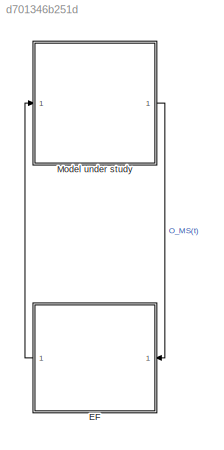
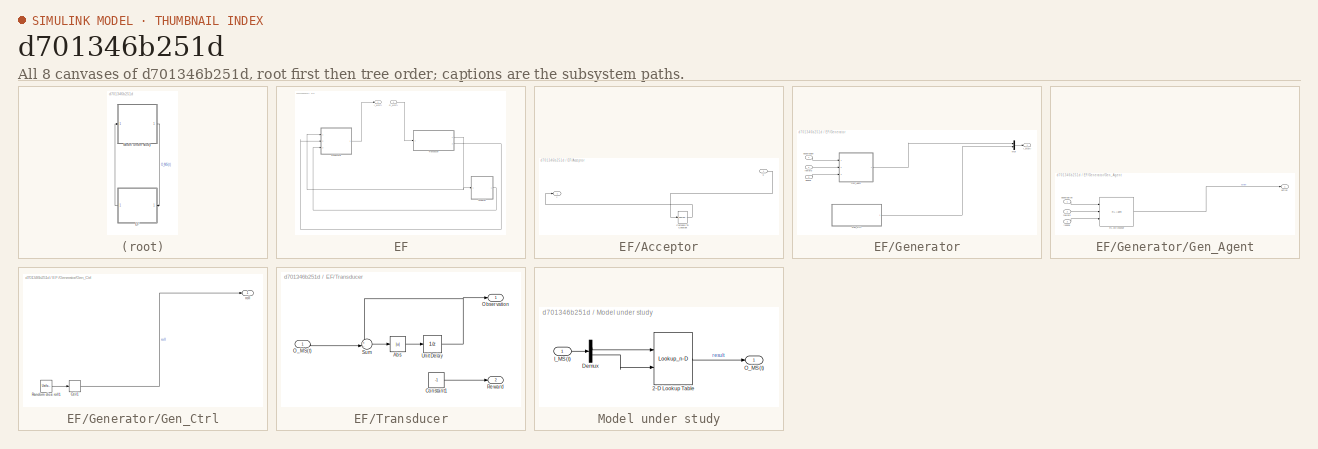
[diagram: thumbnail index - all 8 canvases of the model, root first then tree order]
MODEL slx_d701346b251d
KIND model
CONFIG AbsTol = auto
CONFIG EnableMultiTasking = off
CONFIG FixedStep = auto
CONFIG MaxStep = auto
CONFIG MinStep = auto
CONFIG RelTol = 1e-3
CONFIG SampleTimeConstraint = Unconstrained
CONFIG SolverName = VariableStepAuto
CONFIG StartTime = 0.0
CONFIG StopTime = 20
WORKSPACE source: mxarray member
WORKSPACE d = [1 2 1 2 3 1 2 4 2 4 1 3 ... (30 elements, 5x6)]
WORKSPACE seed = 1234
BLOCK [SubSystem] EF
  Ports = [1, 1]
  RequestExecContextInheritance = off
BLOCK [SubSystem] EF/Acceptor
  Ports = [1, 1]
  RequestExecContextInheritance = off
BLOCK [Reference] EF/Acceptor/Compare To Constant  REF=simulink/Logic and Bit
Operations/Compare
To Constant
  Ports = [1, 1]
  SourceBlock = simulink/Logic and Bit\nOperations/Compare\nTo Constant
  SourceProductBaseCode = SL
  SourceType = Compare To Constant
BLOCK [Inport] EF/Acceptor/u
BLOCK [Outport] EF/Acceptor/y
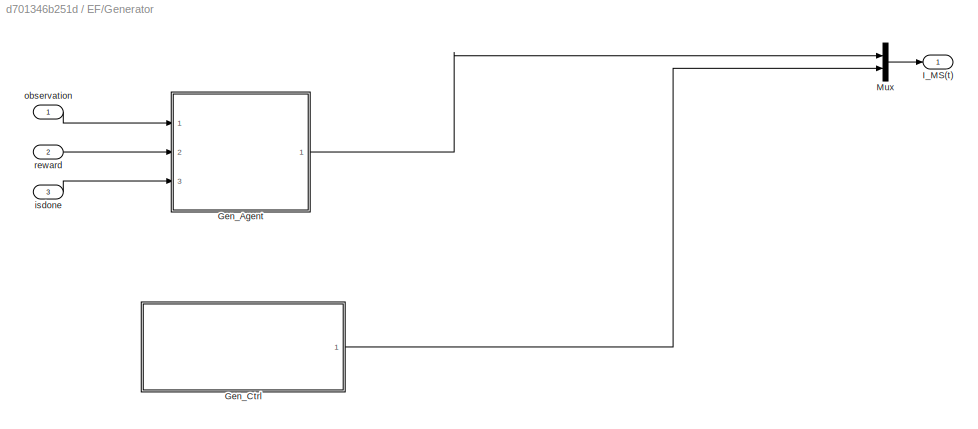
BLOCK [SubSystem] EF/Generator
  Ports = [3, 1]
  RequestExecContextInheritance = off
BLOCK [SubSystem] EF/Generator/Gen_Agent
  Ports = [3, 1]
  RequestExecContextInheritance = off
BLOCK [Reference] EF/Generator/Gen_Agent/RL die chooser  REF=rllib/RL Agent
  Ports = [3, 1]
  SourceBlock = rllib/RL Agent
  SourceProductBaseCode = RL
  SourceType = RL Agent
BLOCK [Outport] EF/Generator/Gen_Agent/action
BLOCK [Inport] EF/Generator/Gen_Agent/isdone
  Port = 3
BLOCK [Inport] EF/Generator/Gen_Agent/observation
BLOCK [Inport] EF/Generator/Gen_Agent/reward
  Port = 2
BLOCK [SubSystem] EF/Generator/Gen_Ctrl
  Ports = [0, 1]
  RequestExecContextInheritance = off
BLOCK [Rounding] EF/Generator/Gen_Ctrl/Ceil1
  Operator = ceil
BLOCK [UniformRandomNumber] EF/Generator/Gen_Ctrl/Random dice roll1
  Maximum = size(d,2)
  Minimum = 0
  SampleTime = 1
  Seed = seed
BLOCK [Outport] EF/Generator/Gen_Ctrl/roll
BLOCK [Outport] EF/Generator/I_MS(t)
BLOCK [Mux] EF/Generator/Mux
  DisplayOption = bar
  Inputs = 2
  Ports = [2, 1]
BLOCK [Inport] EF/Generator/isdone
  Port = 3
BLOCK [Inport] EF/Generator/observation
BLOCK [Inport] EF/Generator/reward
  Port = 2
BLOCK [Outport] EF/I_MS(t)
BLOCK [Inport] EF/O_MS(t)
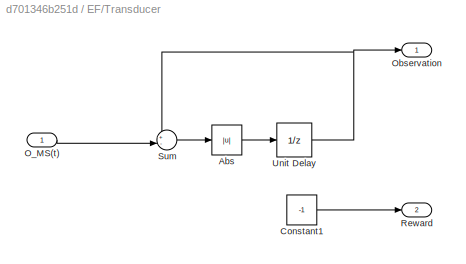
BLOCK [SubSystem] EF/Transducer
  Ports = [1, 2]
  RequestExecContextInheritance = off
BLOCK [Abs] EF/Transducer/Abs
  SaturateOnIntegerOverflow = off
BLOCK [Constant] EF/Transducer/Constant1
  Value = -1
BLOCK [Inport] EF/Transducer/O_MS(t)
BLOCK [Outport] EF/Transducer/Observation
BLOCK [Outport] EF/Transducer/Reward
  Port = 2
BLOCK [Sum] EF/Transducer/Sum
  Inputs = +-|
  Ports = [2, 1]
BLOCK [UnitDelay] EF/Transducer/Unit Delay
  HasFrameUpgradeWarning = on
  InitialCondition = randi(20)
BLOCK [SubSystem] Model under study
  Ports = [1, 1]
  RequestExecContextInheritance = off
BLOCK [Lookup_n-D] Model under study/2-D Lookup Table
  BreakpointsForDimension1 = [1:3]
  BreakpointsForDimension2 = [1:3]
  BreakpointsSpecification = Even spacing
  InputPortMap = u0,u1
  InternalRulePriority = Speed
  Ports = [2, 1]
  RndMeth = Simplest
  Table = d
BLOCK [Demux] Model under study/Demux
  Outputs = 2
  Ports = [1, 2]
BLOCK [Inport] Model under study/I_MS(t)
BLOCK [Outport] Model under study/O_MS(t)
LINE EF/Acceptor/Compare To Constant:1 -> EF/Acceptor/y:1
LINE EF/Acceptor/u:1 -> EF/Acceptor/Compare To Constant:1
LINE EF/Acceptor:1 -> EF/Generator:3
LINE EF/Generator/Gen_Agent/RL die chooser:1 -> EF/Generator/Gen_Agent/action:1
LINE EF/Generator/Gen_Agent/isdone:1 -> EF/Generator/Gen_Agent/RL die chooser:3
LINE EF/Generator/Gen_Agent/observation:1 -> EF/Generator/Gen_Agent/RL die chooser:1
LINE EF/Generator/Gen_Agent/reward:1 -> EF/Generator/Gen_Agent/RL die chooser:2
LINE EF/Generator/Gen_Agent:1 -> EF/Generator/Mux:1
LINE EF/Generator/Gen_Ctrl/Ceil1:1 -> EF/Generator/Gen_Ctrl/roll:1
LINE EF/Generator/Gen_Ctrl/Random dice roll1:1 -> EF/Generator/Gen_Ctrl/Ceil1:1
LINE EF/Generator/Gen_Ctrl:1 -> EF/Generator/Mux:2
LINE EF/Generator/Mux:1 -> EF/Generator/I_MS(t):1
LINE EF/Generator/isdone:1 -> EF/Generator/Gen_Agent:3
LINE EF/Generator/observation:1 -> EF/Generator/Gen_Agent:1
LINE EF/Generator/reward:1 -> EF/Generator/Gen_Agent:2
LINE EF/Generator:1 -> EF/I_MS(t):1
LINE EF/O_MS(t):1 -> EF/Transducer:1
LINE EF/Transducer/Abs:1 -> EF/Transducer/Unit Delay:1
LINE EF/Transducer/Constant1:1 -> EF/Transducer/Reward:1
LINE EF/Transducer/O_MS(t):1 -> EF/Transducer/Sum:2
LINE EF/Transducer/Sum:1 -> EF/Transducer/Abs:1
NET EF/Transducer/Unit Delay:1 -> EF/Transducer/Observation:1, EF/Transducer/Sum:1
NET EF/Transducer:1 -> EF/Acceptor:1, EF/Generator:1
LINE EF/Transducer:2 -> EF/Generator:2
LINE EF:1 -> Model under study:1
LINE Model under study/2-D Lookup Table:1 -> Model under study/O_MS(t):1
LINE Model under study/Demux:1 -> Model under study/2-D Lookup Table:1
LINE Model under study/Demux:2 -> Model under study/2-D Lookup Table:2
LINE Model under study/I_MS(t):1 -> Model under study/Demux:1
LINE Model under study:1 -> EF:1
note: NET lines group one-source signal fan-out (src -> all destinations, sorted); 1:1 wires keep LINE
